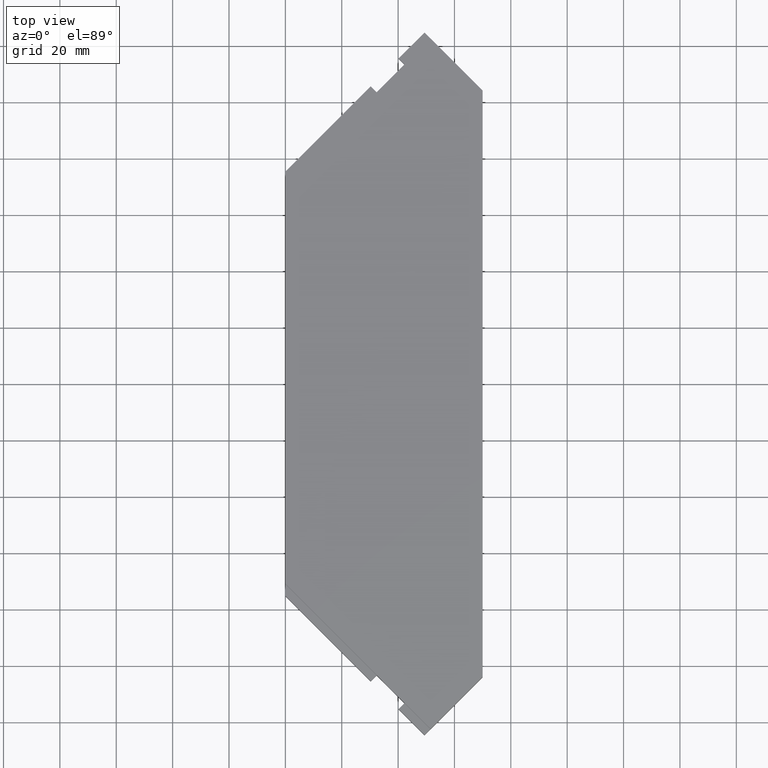
[diagram: clean part render]
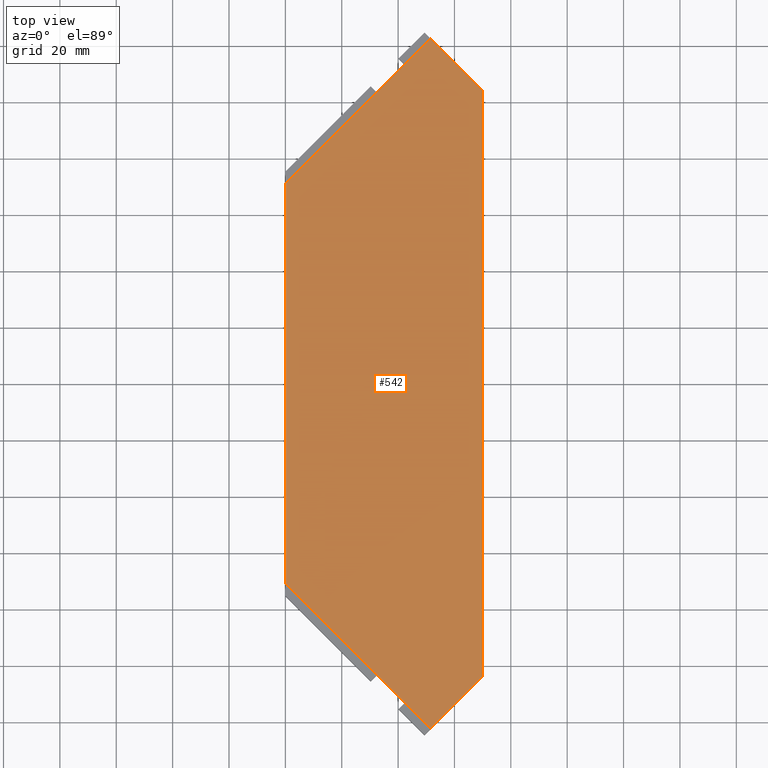
[diagram: same view with one face highlighted and labeled with its STEP entity id]
A machine part, top view. The second image highlights one B-rep face of the part: STEP entity #542.
In plain terms, the highlighted planar face has unit normal (0, 0, 1).
Its self-contained STEP definition (entity closure, byte-faithful):
#40=FACE_OUTER_BOUND('',#74,.T.);
#74=EDGE_LOOP('',(#397,#398,#399,#400,#401,#402));
#110=LINE('',#762,#176);
#122=LINE('',#791,#188);
#134=LINE('',#818,#200);
#135=LINE('',#822,#201);
#136=LINE('',#823,#202);
#137=LINE('',#824,#203);
#176=VECTOR('',#616,207.999999999168);
#188=VECTOR('',#634,72.831998461923);
#200=VECTOR('',#650,72.831998461923);
#201=VECTOR('',#655,26.1629509037977);
#202=VECTOR('',#656,141.999999999432);
#203=VECTOR('',#657,26.1629509037973);
#239=VERTEX_POINT('',#755);
#242=VERTEX_POINT('',#760);
#245=VERTEX_POINT('',#768);
#256=VERTEX_POINT('',#789);
#258=VERTEX_POINT('',#795);
#269=VERTEX_POINT('',#816);
#294=EDGE_CURVE('',#239,#242,#110,.T.);
#308=EDGE_CURVE('',#245,#256,#122,.T.);
#321=EDGE_CURVE('',#258,#269,#134,.T.);
#323=EDGE_CURVE('',#242,#245,#135,.T.);
#324=EDGE_CURVE('',#256,#258,#136,.T.);
#325=EDGE_CURVE('',#269,#239,#137,.T.);
#397=ORIENTED_EDGE('',*,*,#294,.T.);
#398=ORIENTED_EDGE('',*,*,#323,.T.);
#399=ORIENTED_EDGE('',*,*,#308,.T.);
#400=ORIENTED_EDGE('',*,*,#324,.T.);
#401=ORIENTED_EDGE('',*,*,#321,.T.);
#402=ORIENTED_EDGE('',*,*,#325,.T.);
#516=PLANE('',#578);
#542=ADVANCED_FACE('',(#40),#516,.T.);
#578=AXIS2_PLACEMENT_3D('',#821,#653,#654);
#616=DIRECTION('',(0.,1.,0.));
#634=DIRECTION('',(-0.707106781186547,-0.707106781186548,0.));
#650=DIRECTION('',(0.707106781186547,-0.707106781186548,0.));
#653=DIRECTION('center_axis',(0.,0.,1.));
#654=DIRECTION('ref_axis',(1.,0.,0.));
#655=DIRECTION('',(-0.707106781186539,0.707106781186556,0.));
#656=DIRECTION('',(0.,-1.,0.));
#657=DIRECTION('',(0.707106781186553,0.707106781186542,0.));
#755=CARTESIAN_POINT('',(69.9999999997199,-103.999999999584,18.));
#760=CARTESIAN_POINT('',(69.9999999997199,103.999999999584,18.));
#762=CARTESIAN_POINT('',(69.9999999997199,-103.999999999584,18.));
#768=CARTESIAN_POINT('',(51.499999999794,122.49999999951,18.));
#789=CARTESIAN_POINT('',(0.,70.999999999716,18.));
#791=CARTESIAN_POINT('',(51.499999999794,122.49999999951,18.));
#795=CARTESIAN_POINT('',(0.,-70.999999999716,18.));
#816=CARTESIAN_POINT('',(51.499999999794,-122.49999999951,18.));
#818=CARTESIAN_POINT('',(0.,-70.999999999716,18.));
#821=CARTESIAN_POINT('Origin',(-7.0000047252956,-147.000004724302,18.));
#822=CARTESIAN_POINT('',(69.9999999997199,103.999999999584,18.));
#823=CARTESIAN_POINT('',(0.,70.999999999716,18.));
#824=CARTESIAN_POINT('',(51.499999999794,-122.49999999951,18.));